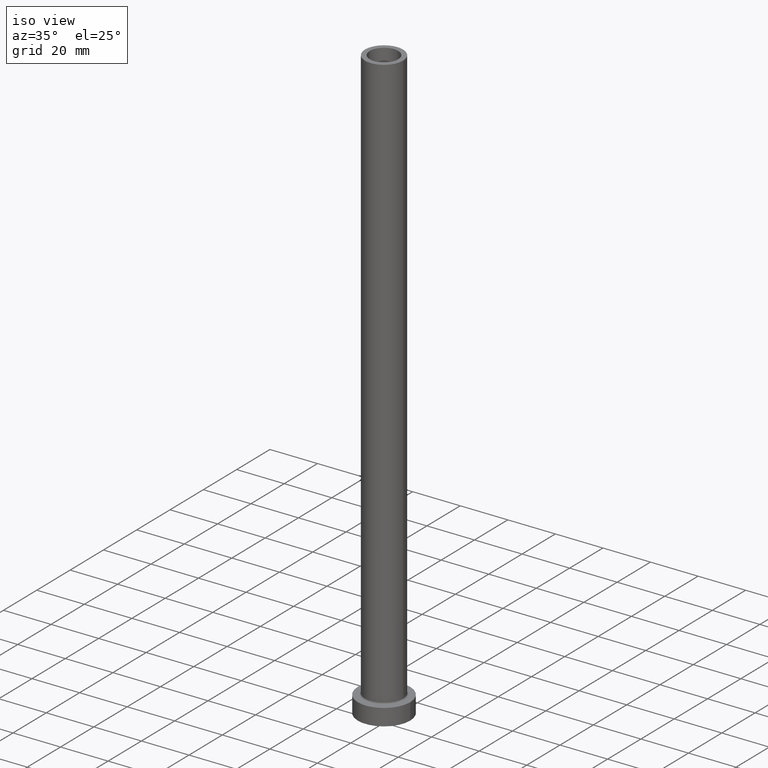
[diagram: clean part render]
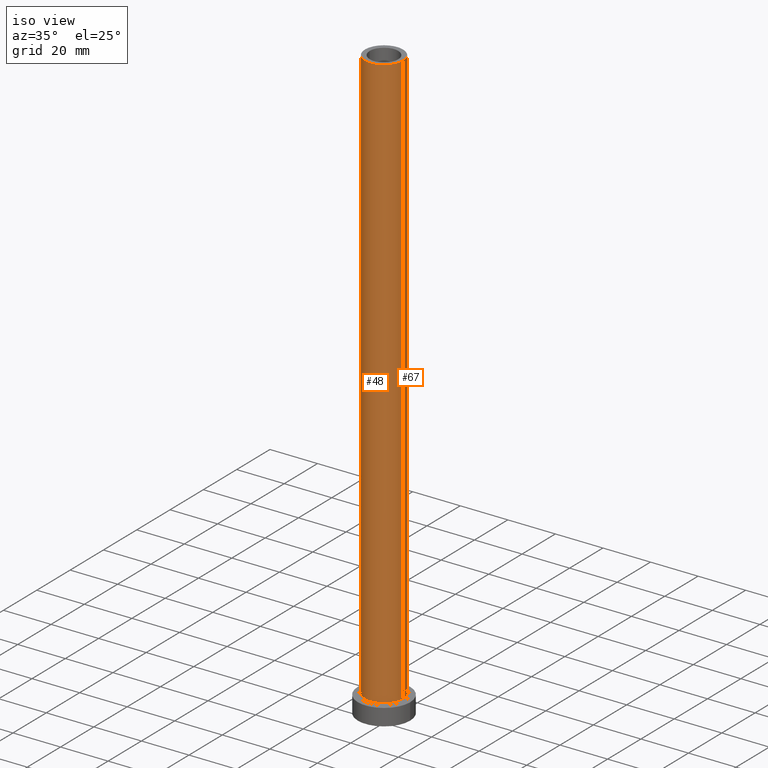
[diagram: same view with one multi-face feature highlighted, each face labeled with its STEP entity id]
A machine part, iso view. The highlighted faces form ONE feature: a constant-radius fillet chain: 2 tangent blend faces with common blend radius 8 mm. The faces share edges in the B-rep.
Their STEP definitions:
[1] entity #48 (Cylinder):
#18 = DIRECTION ( 'NONE',  ( -0.000000000000000000, -0.000000000000000000, -1.000000000000000000 ) ) ;
#23 = CARTESIAN_POINT ( 'NONE',  ( 8.000000000000000000, 9.797174393178825657E-16, 250.0000000000000000 ) ) ;
#24 = AXIS2_PLACEMENT_3D ( 'NONE', #35, #352, #347 ) ;
#25 = EDGE_CURVE ( 'NONE', #151, #187, #407, .T. ) ;
#31 = VECTOR ( 'NONE', #80, 1000.000000000000000 ) ;
#35 = CARTESIAN_POINT ( 'NONE',  ( 0.000000000000000000, 0.000000000000000000, 250.0000000000000000 ) ) ;
#48 = ADVANCED_FACE ( 'NONE', ( #129 ), #310, .T. ) ;
#62 = CIRCLE ( 'NONE', #24, 8.000000000000000000 ) ;
#66 = CARTESIAN_POINT ( 'NONE',  ( -8.000000000000000000, 0.000000000000000000, 250.0000000000000000 ) ) ;
#77 = LINE ( 'NONE', #441, #31 ) ;
#80 = DIRECTION ( 'NONE',  ( -0.000000000000000000, -0.000000000000000000, -1.000000000000000000 ) ) ;
#86 = VERTEX_POINT ( 'NONE', #374 ) ;
#91 = DIRECTION ( 'NONE',  ( 0.000000000000000000, 0.000000000000000000, 1.000000000000000000 ) ) ;
#102 = EDGE_CURVE ( 'NONE', #86, #187, #199, .T. ) ;
#129 = FACE_OUTER_BOUND ( 'NONE', #385, .T. ) ;
#135 = DIRECTION ( 'NONE',  ( -1.000000000000000000, 0.000000000000000000, 0.000000000000000000 ) ) ;
#141 = CARTESIAN_POINT ( 'NONE',  ( 8.000000000000000000, 9.797174393178825657E-16, 7.700000000000012612 ) ) ;
#151 = VERTEX_POINT ( 'NONE', #283 ) ;
#187 = VERTEX_POINT ( 'NONE', #141 ) ;
#189 = AXIS2_PLACEMENT_3D ( 'NONE', #303, #344, #135 ) ;
#199 = LINE ( 'NONE', #23, #414 ) ;
#252 = EDGE_CURVE ( 'NONE', #329, #86, #62, .T. ) ;
#263 = ORIENTED_EDGE ( 'NONE', *, *, #252, .F. ) ;
#283 = CARTESIAN_POINT ( 'NONE',  ( -8.000000000000000000, 0.000000000000000000, 7.700000000000012612 ) ) ;
#302 = AXIS2_PLACEMENT_3D ( 'NONE', #451, #91, #346 ) ;
#303 = CARTESIAN_POINT ( 'NONE',  ( 0.000000000000000000, 0.000000000000000000, 250.0000000000000000 ) ) ;
#310 = CYLINDRICAL_SURFACE ( 'NONE', #189, 8.000000000000000000 ) ;
#329 = VERTEX_POINT ( 'NONE', #66 ) ;
#344 = DIRECTION ( 'NONE',  ( -0.000000000000000000, -0.000000000000000000, -1.000000000000000000 ) ) ;
#346 = DIRECTION ( 'NONE',  ( 1.000000000000000000, 0.000000000000000000, 0.000000000000000000 ) ) ;
#347 = DIRECTION ( 'NONE',  ( 1.000000000000000000, 0.000000000000000000, 0.000000000000000000 ) ) ;
#352 = DIRECTION ( 'NONE',  ( 0.000000000000000000, 0.000000000000000000, 1.000000000000000000 ) ) ;
#371 = EDGE_CURVE ( 'NONE', #329, #151, #77, .T. ) ;
#373 = ORIENTED_EDGE ( 'NONE', *, *, #25, .T. ) ;
#374 = CARTESIAN_POINT ( 'NONE',  ( 8.000000000000000000, 9.797174393178825657E-16, 250.0000000000000000 ) ) ;
#385 = EDGE_LOOP ( 'NONE', ( #440, #263, #427, #373 ) ) ;
#407 = CIRCLE ( 'NONE', #302, 8.000000000000000000 ) ;
#414 = VECTOR ( 'NONE', #18, 1000.000000000000000 ) ;
#427 = ORIENTED_EDGE ( 'NONE', *, *, #371, .T. ) ;
#440 = ORIENTED_EDGE ( 'NONE', *, *, #102, .F. ) ;
#441 = CARTESIAN_POINT ( 'NONE',  ( -8.000000000000000000, 0.000000000000000000, 250.0000000000000000 ) ) ;
#451 = CARTESIAN_POINT ( 'NONE',  ( 0.000000000000000000, 0.000000000000000000, 7.700000000000012612 ) ) ;
[2] entity #67 (Cylinder):
#2 = EDGE_LOOP ( 'NONE', ( #258, #254, #183, #315 ) ) ;
#18 = DIRECTION ( 'NONE',  ( -0.000000000000000000, -0.000000000000000000, -1.000000000000000000 ) ) ;
#23 = CARTESIAN_POINT ( 'NONE',  ( 8.000000000000000000, 9.797174393178825657E-16, 250.0000000000000000 ) ) ;
#31 = VECTOR ( 'NONE', #80, 1000.000000000000000 ) ;
#66 = CARTESIAN_POINT ( 'NONE',  ( -8.000000000000000000, 0.000000000000000000, 250.0000000000000000 ) ) ;
#67 = ADVANCED_FACE ( 'NONE', ( #420 ), #381, .T. ) ;
#77 = LINE ( 'NONE', #441, #31 ) ;
#80 = DIRECTION ( 'NONE',  ( -0.000000000000000000, -0.000000000000000000, -1.000000000000000000 ) ) ;
#84 = DIRECTION ( 'NONE',  ( 0.000000000000000000, 0.000000000000000000, 1.000000000000000000 ) ) ;
#86 = VERTEX_POINT ( 'NONE', #374 ) ;
#102 = EDGE_CURVE ( 'NONE', #86, #187, #199, .T. ) ;
#122 = AXIS2_PLACEMENT_3D ( 'NONE', #147, #84, #253 ) ;
#127 = DIRECTION ( 'NONE',  ( -0.000000000000000000, -0.000000000000000000, -1.000000000000000000 ) ) ;
#141 = CARTESIAN_POINT ( 'NONE',  ( 8.000000000000000000, 9.797174393178825657E-16, 7.700000000000012612 ) ) ;
#147 = CARTESIAN_POINT ( 'NONE',  ( 0.000000000000000000, 0.000000000000000000, 7.700000000000012612 ) ) ;
#151 = VERTEX_POINT ( 'NONE', #283 ) ;
#171 = DIRECTION ( 'NONE',  ( -1.000000000000000000, 0.000000000000000000, 0.000000000000000000 ) ) ;
#183 = ORIENTED_EDGE ( 'NONE', *, *, #383, .T. ) ;
#187 = VERTEX_POINT ( 'NONE', #141 ) ;
#199 = LINE ( 'NONE', #23, #414 ) ;
#211 = DIRECTION ( 'NONE',  ( 1.000000000000000000, 0.000000000000000000, 0.000000000000000000 ) ) ;
#231 = CIRCLE ( 'NONE', #309, 8.000000000000000000 ) ;
#253 = DIRECTION ( 'NONE',  ( 1.000000000000000000, 0.000000000000000000, 0.000000000000000000 ) ) ;
#254 = ORIENTED_EDGE ( 'NONE', *, *, #102, .T. ) ;
#258 = ORIENTED_EDGE ( 'NONE', *, *, #295, .F. ) ;
#281 = DIRECTION ( 'NONE',  ( 0.000000000000000000, 0.000000000000000000, 1.000000000000000000 ) ) ;
#283 = CARTESIAN_POINT ( 'NONE',  ( -8.000000000000000000, 0.000000000000000000, 7.700000000000012612 ) ) ;
#295 = EDGE_CURVE ( 'NONE', #86, #329, #231, .T. ) ;
#309 = AXIS2_PLACEMENT_3D ( 'NONE', #393, #281, #211 ) ;
#314 = CIRCLE ( 'NONE', #122, 8.000000000000000000 ) ;
#315 = ORIENTED_EDGE ( 'NONE', *, *, #371, .F. ) ;
#329 = VERTEX_POINT ( 'NONE', #66 ) ;
#335 = AXIS2_PLACEMENT_3D ( 'NONE', #382, #127, #171 ) ;
#371 = EDGE_CURVE ( 'NONE', #329, #151, #77, .T. ) ;
#374 = CARTESIAN_POINT ( 'NONE',  ( 8.000000000000000000, 9.797174393178825657E-16, 250.0000000000000000 ) ) ;
#381 = CYLINDRICAL_SURFACE ( 'NONE', #335, 8.000000000000000000 ) ;
#382 = CARTESIAN_POINT ( 'NONE',  ( 0.000000000000000000, 0.000000000000000000, 250.0000000000000000 ) ) ;
#383 = EDGE_CURVE ( 'NONE', #187, #151, #314, .T. ) ;
#393 = CARTESIAN_POINT ( 'NONE',  ( 0.000000000000000000, 0.000000000000000000, 250.0000000000000000 ) ) ;
#414 = VECTOR ( 'NONE', #18, 1000.000000000000000 ) ;
#420 = FACE_OUTER_BOUND ( 'NONE', #2, .T. ) ;
#441 = CARTESIAN_POINT ( 'NONE',  ( -8.000000000000000000, 0.000000000000000000, 250.0000000000000000 ) ) ;